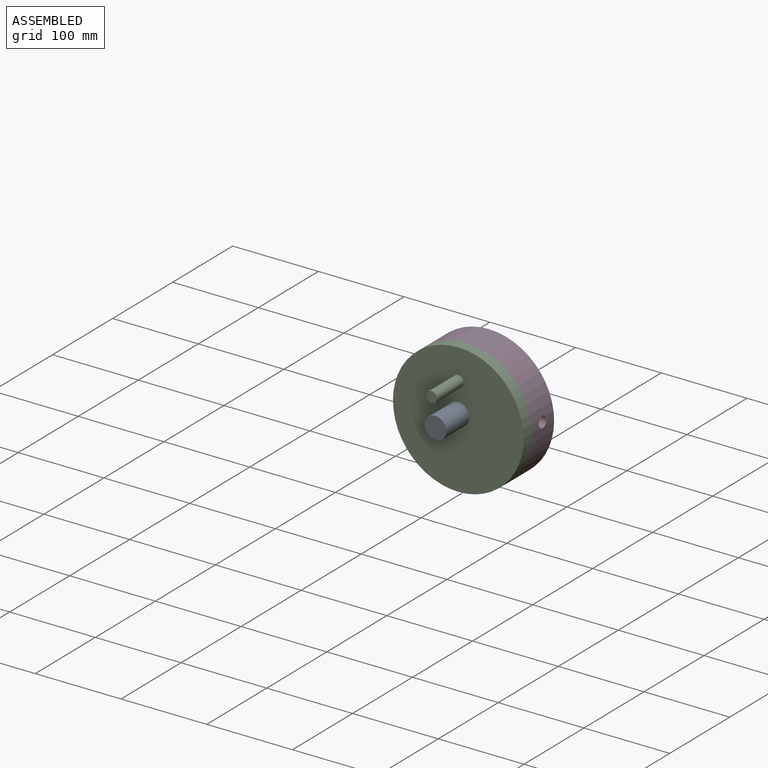
[diagram: assembled view]
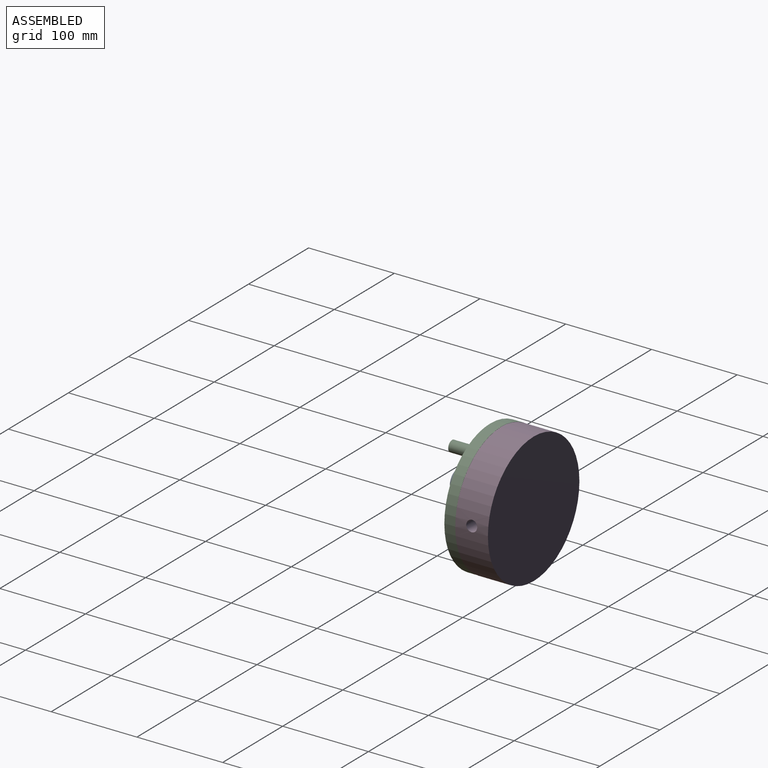
[diagram: assembled view, second angle]
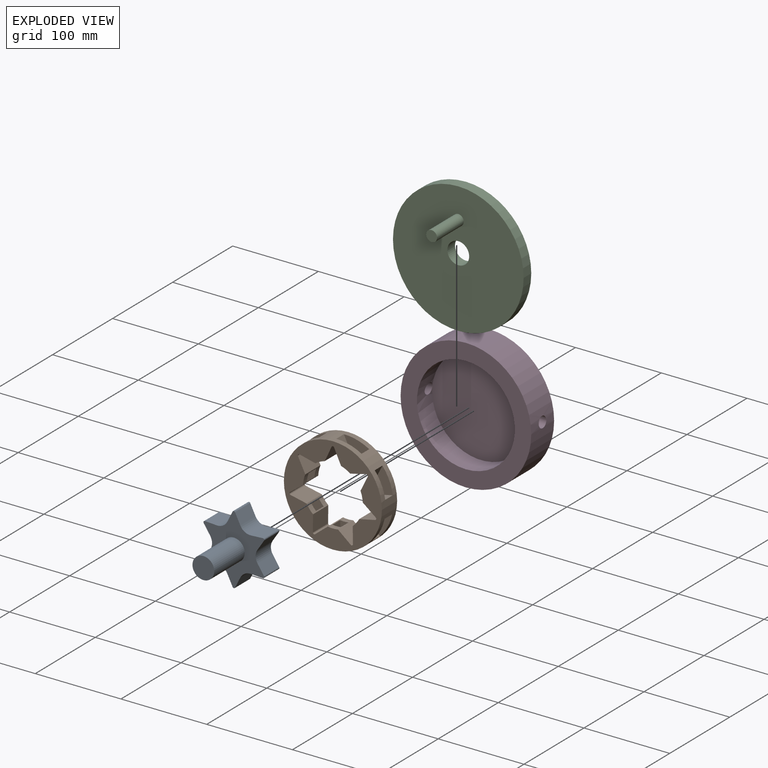
[diagram: exploded view]
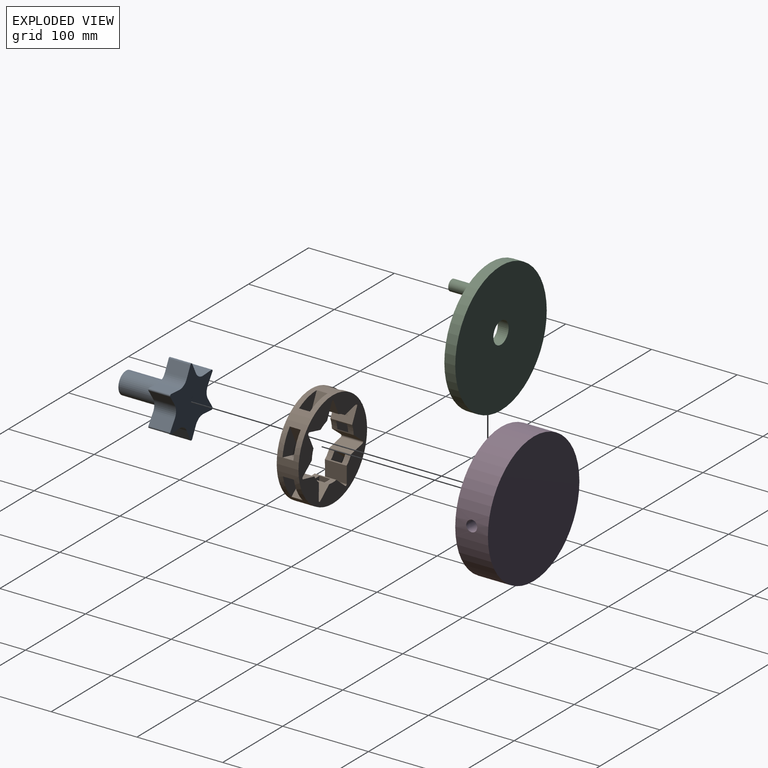
[diagram: exploded view, second angle]
ASSEMBLY  parts=4 mates=3
PART A: 28 faces, bbox 70.8x76.2x81.3 mm
  f0: plane 25.4x12.33mm, normal (0.89,0,-0.45), area 350mm2, adj f1,f23,f24,f25
  f1: cylinder r=12.97mm len=25.4mm, axis (0,1,0), area 384.6mm2, adj f0,f2,f24,f25
  f2: plane 25.4x13.76mm, normal (-0.06,0,-1), area 350mm2, adj f1,f3,f24,f25
  f3: cylinder r=1.59mm len=25.4mm, axis (0,1,0), area 89.3mm2, adj f2,f4,f24,f25
  f4: plane 25.4x11.5mm, normal (0.83,0,0.55), area 350mm2, adj f3,f5,f24,f25
  f5: cylinder r=12.97mm len=25.4mm, axis (0,1,0), area 384.6mm2, adj f4,f6,f24,f25
  f6: plane 25.4x11.5mm, normal (0.83,0,-0.55), area 350mm2, adj f5,f7,f24,f25
  f7: cylinder r=1.59mm len=25.4mm, axis (0,1,0), area 89.3mm2, adj f6,f8,f24,f25
  f8: plane 25.4x13.76mm, normal (-0.06,0,1), area 350mm2, adj f7,f9,f24,f25
  f9: cylinder r=12.97mm len=25.4mm, axis (0,1,0), area 384.6mm2, adj f8,f10,f24,f25
  f10: plane 25.4x12.33mm, normal (0.89,0,0.45), area 350mm2, adj f9,f11,f24,f25
  f11: cylinder r=1.59mm len=25.4mm, axis (0,1,0), area 89.3mm2, adj f10,f12,f24,f25
  f12: plane 25.4x12.33mm, normal (-0.89,0,0.45), area 350mm2, adj f11,f13,f24,f25
  f13: cylinder r=12.97mm len=25.4mm, axis (0,1,0), area 384.6mm2, adj f12,f14,f24,f25
  f14: plane 25.4x13.76mm, normal (0.06,0,1), area 350mm2, adj f13,f15,f24,f25
  f15: cylinder r=1.59mm len=25.4mm, axis (0,1,0), area 89.3mm2, adj f14,f16,f24,f25
  f16: plane 25.4x11.5mm, normal (-0.83,0,-0.55), area 350mm2, adj f15,f17,f24,f25
  f17: cylinder r=12.97mm len=25.4mm, axis (0,1,0), area 384.6mm2, adj f16,f18,f24,f25
  f18: plane 25.4x11.5mm, normal (-0.83,0,0.55), area 350mm2, adj f17,f19,f24,f25
  f19: cylinder r=1.59mm len=25.4mm, axis (0,1,0), area 89.3mm2, adj f18,f20,f24,f25
  f20: plane 25.4x13.76mm, normal (0.06,0,-1), area 350mm2, adj f19,f21,f24,f25
  f21: cylinder r=12.97mm len=25.4mm, axis (0,1,0), area 384.6mm2, adj f20,f22,f24,f25
  f22: plane 25.4x12.33mm, normal (-0.89,0,-0.45), area 350mm2, adj f21,f23,f24,f25
  f23: cylinder r=1.59mm len=25.4mm, axis (0,1,0), area 89.3mm2, adj f0,f22,f24,f25
  f24: plane 81.27x70.81mm, normal (0,-1,0), area 2474.3mm2, adj f0,f1,f2,f3,f4,f5,f6,f7
  f25: plane 81.27x70.81mm, normal (0,1,0), area 2981mm2, adj f0,f1,f2,f3,f4,f5,f6,f7
  f26: cylinder r=12.7mm len=50.8mm, axis (0,1,0), area 4053.7mm2, adj f24,f27
  f27: plane 25.4x25.4mm, normal (0,-1,0), area 506.7mm2, adj f26
PART B: 59 faces, bbox 114.3x25.4x114.3 mm
  f0: cylinder r=34.92mm len=25.4mm, axis (0,1,0), area 184.8mm2, adj f8,f9,f29,f30,f43,f44,f45,f56
  f1: cylinder r=34.92mm len=25.4mm, axis (0,1,0), area 184.8mm2, adj f11,f12,f29,f30,f40,f41,f42,f57
  f2: cylinder r=34.92mm len=25.4mm, axis (0,1,0), area 184.8mm2, adj f14,f15,f29,f30,f46,f47,f48,f58
  f3: cylinder r=34.92mm len=25.4mm, axis (0,1,0), area 184.8mm2, adj f17,f18,f29,f30,f49,f50,f51,f52
  f4: cylinder r=34.92mm len=25.4mm, axis (0,1,0), area 184.8mm2, adj f20,f21,f29,f30,f31,f32,f33,f53
  f5: cylinder r=34.92mm len=25.4mm, axis (0,1,0), area 184.8mm2, adj f23,f24,f29,f30,f37,f38,f39,f54
  f6: cylinder r=34.92mm len=25.4mm, axis (0,1,0), area 184.8mm2, adj f26,f27,f29,f30,f34,f35,f36,f55
  f7: cylinder r=57.15mm len=114.3mm, axis (0,1,0), area 6376.1mm2, adj f29,f30,f31,f32,f33,f34,f35,f36
  f8: plane 25.4x17.3mm, normal (-0.91,0,-0.42), area 485mm2, adj f0,f28,f29,f30
  f9: plane 25.4x18.57mm, normal (0.23,0,-0.97), area 485mm2, adj f0,f10,f29,f30
  f10: cylinder r=1.59mm len=25.4mm, axis (0,1,0), area 91.4mm2, adj f9,f11,f29,f30
  f11: plane 25.4x17.11mm, normal (-0.9,0,0.44), area 485mm2, adj f1,f10,f29,f30
  f12: plane 25.4x15.06mm, normal (-0.61,0,-0.79), area 485mm2, adj f1,f13,f29,f30
  f13: cylinder r=1.59mm len=25.4mm, axis (0,1,0), area 91.4mm2, adj f12,f14,f29,f30
  f14: plane 25.4x18.66mm, normal (-0.21,0,0.98), area 485mm2, adj f2,f13,f29,f30
  f15: plane 25.4x19.09mm, normal (-1,0,-0.01), area 485mm2, adj f2,f16,f29,f30
  f16: cylinder r=1.59mm len=25.4mm, axis (0,1,0), area 91.4mm2, adj f15,f17,f29,f30
  f17: plane 25.4x14.79mm, normal (0.63,0,0.77), area 485mm2, adj f3,f16,f29,f30
  f18: plane 25.4x14.79mm, normal (-0.63,0,0.77), area 485mm2, adj f3,f19,f29,f30
  f19: cylinder r=1.59mm len=25.4mm, axis (0,1,0), area 91.4mm2, adj f18,f20,f29,f30
  f20: plane 25.4x19.09mm, normal (1,0,-0.01), area 485mm2, adj f4,f19,f29,f30
  f21: plane 25.4x18.66mm, normal (0.21,0,0.98), area 485mm2, adj f4,f22,f29,f30
  f22: cylinder r=1.59mm len=25.4mm, axis (0,1,0), area 91.4mm2, adj f21,f23,f29,f30
  f23: plane 25.4x15.06mm, normal (0.61,0,-0.79), area 485mm2, adj f5,f22,f29,f30
  f24: plane 25.4x17.11mm, normal (0.9,0,0.44), area 485mm2, adj f5,f25,f29,f30
  f25: cylinder r=1.59mm len=25.4mm, axis (0,1,0), area 91.4mm2, adj f24,f26,f29,f30
  f26: plane 25.4x18.57mm, normal (-0.23,0,-0.97), area 485mm2, adj f6,f25,f29,f30
  f27: plane 25.4x17.3mm, normal (0.91,0,-0.42), area 485mm2, adj f6,f28,f29,f30
  f28: cylinder r=1.59mm len=25.4mm, axis (0,1,0), area 91.4mm2, adj f8,f27,f29,f30
  f29: plane 114.3x114.3mm, normal (0,-1,0), area 5206.3mm2, adj f0,f1,f2,f3,f4,f5,f6,f7
  f30: plane 114.3x114.3mm, normal (0,1,0), area 5206.3mm2, adj f0,f1,f2,f3,f4,f5,f6,f7
  f31: plane 33.84x23.41mm, normal (0,-1,0), area 454.7mm2, adj f4,f7,f32,f53
  f32: plane 17.48x13.94mm, normal (0.62,0,-0.78), area 283.9mm2, adj f4,f7,f31,f33
  f33: plane 33.84x23.41mm, normal (0,1,0), area 454.7mm2, adj f4,f7,f32,f53
  f34: plane 34.24x24.27mm, normal (0,-1,0), area 454.7mm2, adj f6,f7,f35,f55
  f35: plane 20.14x12.7mm, normal (-0.9,0,-0.43), area 283.9mm2, adj f6,f7,f34,f36
  f36: plane 34.24x24.27mm, normal (0,1,0), area 454.7mm2, adj f6,f7,f35,f55
  f37: plane 30.48x24.48mm, normal (0,-1,0), area 454.7mm2, adj f5,f7,f38,f54
  f38: plane 21.79x12.7mm, normal (-0.22,0,-0.97), area 283.9mm2, adj f5,f7,f37,f39
  f39: plane 30.48x24.48mm, normal (0,1,0), area 454.7mm2, adj f5,f7,f38,f54
  f40: plane 32.93x23.91mm, normal (0,-1,0), area 454.7mm2, adj f1,f7,f41,f57
  f41: plane 21.79x12.7mm, normal (-0.22,0,0.97), area 283.9mm2, adj f1,f7,f40,f42
  f42: plane 32.93x23.91mm, normal (0,1,0), area 454.7mm2, adj f1,f7,f41,f57
  f43: plane 29.46x28.04mm, normal (0,-1,0), area 454.7mm2, adj f0,f7,f44,f56
  f44: plane 20.14x12.7mm, normal (-0.9,0,0.43), area 283.9mm2, adj f0,f7,f43,f45
  f45: plane 29.46x28.04mm, normal (0,1,0), area 454.7mm2, adj f0,f7,f44,f56
  f46: plane 31.74x26.96mm, normal (0,-1,0), area 454.7mm2, adj f2,f7,f47,f58
  f47: plane 17.48x13.94mm, normal (0.62,0,0.78), area 283.9mm2, adj f2,f7,f46,f48
  f48: plane 31.74x26.96mm, normal (0,1,0), area 454.7mm2, adj f2,f7,f47,f58
  f49: plane 29.97x22.55mm, normal (0,-1,0), area 454.7mm2, adj f3,f7,f50,f52
  f50: plane 22.35x12.7mm, normal (1,0,0), area 283.9mm2, adj f3,f7,f49,f51
  f51: plane 29.97x22.55mm, normal (0,1,0), area 454.7mm2, adj f3,f7,f50,f52
  f52: plane 20.44x16.69mm, normal (-0.63,0,-0.77), area 335.2mm2, adj f3,f7,f49,f51
  f53: plane 26.39x12.7mm, normal (-1,0,0.01), area 335.2mm2, adj f4,f7,f31,f33
  f54: plane 20.82x16.22mm, normal (-0.61,0,0.79), area 335.2mm2, adj f5,f7,f37,f39
  f55: plane 25.66x12.7mm, normal (0.23,0,0.97), area 335.2mm2, adj f6,f7,f34,f36
  f56: plane 23.91x12.7mm, normal (0.91,0,0.42), area 335.2mm2, adj f0,f7,f43,f45
  f57: plane 23.65x12.7mm, normal (0.9,0,-0.44), area 335.2mm2, adj f1,f7,f40,f42
  f58: plane 25.8x12.7mm, normal (0.21,0,-0.98), area 335.2mm2, adj f2,f7,f46,f48
PART C: 6 faces, bbox 152.4x57.2x152.4 mm
  f0: cylinder r=76.2mm len=152.4mm, axis (0,1,0), area 6080.5mm2, adj f2,f3
  f1: cylinder r=12.7mm len=25.4mm, axis (0,1,0), area 1013.4mm2, adj f2,f3
  f2: plane 152.4x152.4mm, normal (0,-1,0), area 17608.1mm2, adj f0,f1,f5
  f3: plane 152.4x152.4mm, normal (0,1,0), area 17734.8mm2, adj f0,f1
  f4: plane 12.7x12.7mm, normal (0,-1,0), area 126.7mm2, adj f5
  f5: cylinder r=6.35mm len=44.45mm, axis (0,1,0), area 1773.5mm2, adj f2,f4
PART D: 7 faces, bbox 152.4x38.1x152.4 mm
  f0: cylinder r=76.2mm len=152.4mm, axis (0,-1,0), area 17986.8mm2, adj f1,f3,f5,f6
  f1: plane 152.4x152.4mm, normal (0,1,0), area 18241.5mm2, adj f0
  f2: cylinder r=57.15mm len=114.3mm, axis (0,1,0), area 8869.2mm2, adj f3,f4,f5,f6
  f3: plane 152.4x152.4mm, normal (0,-1,0), area 7980.6mm2, adj f0,f2
  f4: plane 114.3x114.3mm, normal (0,-1,0), area 10260.8mm2, adj f2
  f5: cylinder r=6.35mm len=20.33mm, axis (1,0,0), area 779.4mm2, adj f0,f2
  f6: cylinder r=6.35mm len=20.34mm, axis (1,0,0), area 779.1mm2, adj f0,f2
PLACE A t=(0,0,0.16)mm
PLACE B at identity
PLACE C t=(0,0,0.16)mm
PLACE D at identity fixed
MATE fastened C.f3 <-> D.f0  axis (0,1,0) through (0,-25.4,-5.71)mm
MATE revolute B.f3 <-> D.f0  axis (0,1,0) through (0,0,-5.71)mm
MATE revolute C.f1 <-> A.f26  axis (0,1,0) through (0,-25.4,0.16)mm
